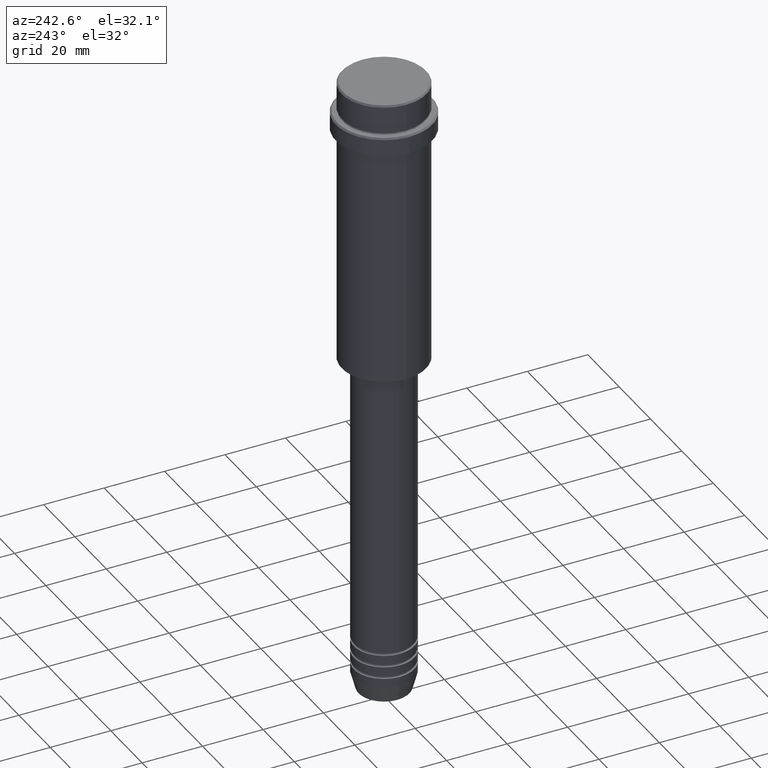
[diagram: clean part render]
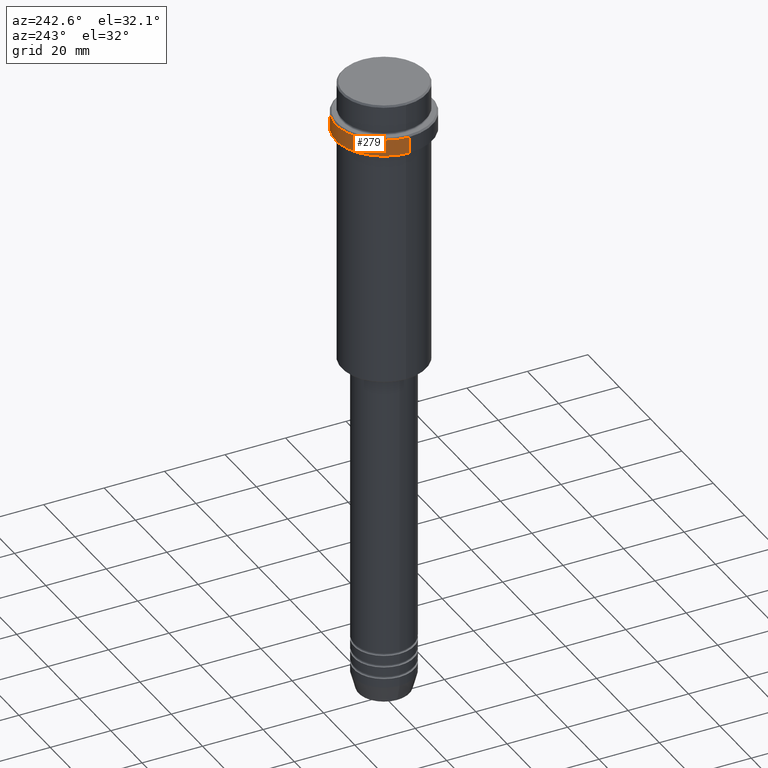
[diagram: same view with one face highlighted and labeled with its STEP entity id]
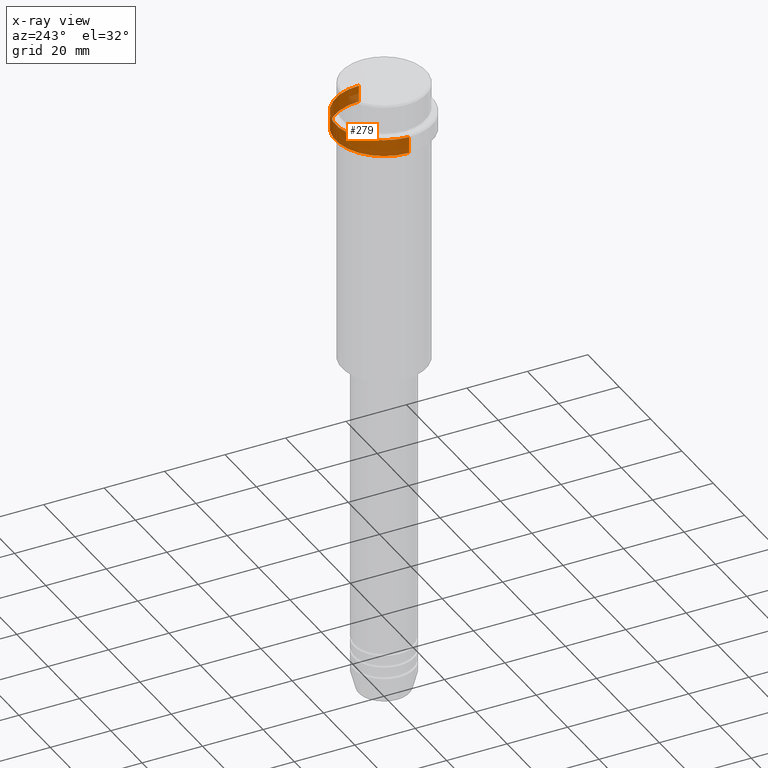
[diagram: x-ray of the same camera — body ghosted, the highlighted face saturated]
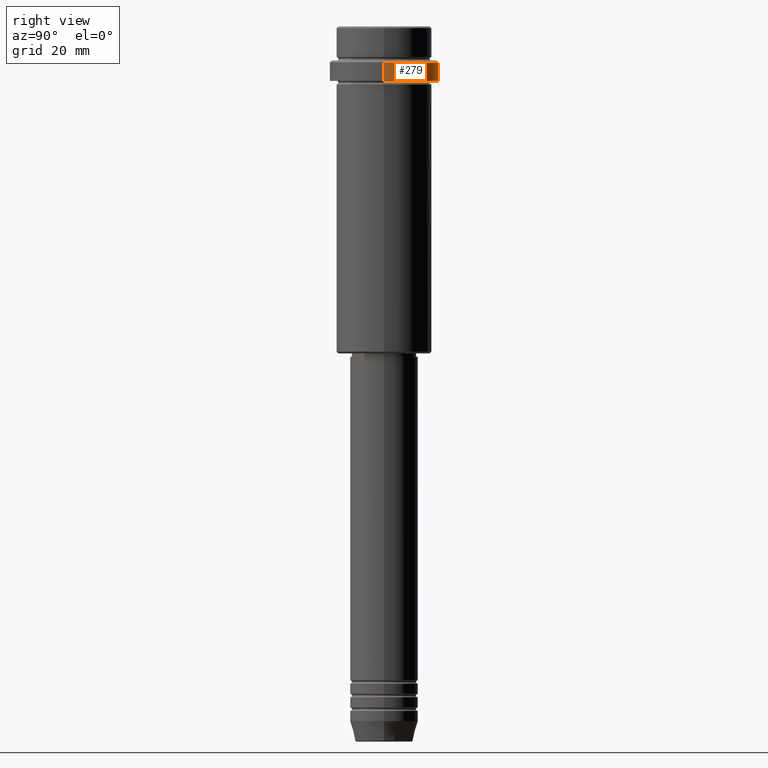
[diagram: same view with one face highlighted and labeled with its STEP entity id]
A machine part, auxiliary view. The second image highlights one B-rep face of the part: STEP entity #279.
The next image is the same camera in x-ray: the body ghosted, the highlighted face saturated — about 5% of this face is hidden behind the body in this view.
A second angle (right view) of the same face is appended — the face is thin or edge-on in the first view.
In plain terms, the highlighted cylindrical surface (partial cylindrical patch) has radius 16 mm, axis along (-0, -0, 1).
Its self-contained STEP definition (entity closure, byte-faithful):
#103 = AXIS2_PLACEMENT_3D ( 'NONE', #927, #476, #1032 ) ;
#158 = LINE ( 'NONE', #1035, #1288 ) ;
#268 = ORIENTED_EDGE ( 'NONE', *, *, #1094, .T. ) ;
#279 = ADVANCED_FACE ( 'NONE', ( #1397 ), #1392, .T. ) ;
#319 = CIRCLE ( 'NONE', #103, 15.99999999999997335 ) ;
#337 = ORIENTED_EDGE ( 'NONE', *, *, #515, .T. ) ;
#363 = DIRECTION ( 'NONE',  ( -0.000000000000000000, -0.000000000000000000, 1.000000000000000000 ) ) ;
#385 = CARTESIAN_POINT ( 'NONE',  ( 15.99999999999997335, 0.000000000000000000, 0.000000000000000000 ) ) ;
#446 = CARTESIAN_POINT ( 'NONE',  ( 15.99999999999997335, 0.000000000000000000, -16.00000000000000000 ) ) ;
#467 = LINE ( 'NONE', #385, #530 ) ;
#476 = DIRECTION ( 'NONE',  ( 0.000000000000000000, 0.000000000000000000, -1.000000000000000000 ) ) ;
#506 = EDGE_CURVE ( 'NONE', #1349, #1009, #467, .T. ) ;
#512 = VERTEX_POINT ( 'NONE', #1273 ) ;
#515 = EDGE_CURVE ( 'NONE', #1121, #1009, #319, .T. ) ;
#530 = VECTOR ( 'NONE', #363, 1000.000000000000000 ) ;
#576 = AXIS2_PLACEMENT_3D ( 'NONE', #877, #1398, #1404 ) ;
#625 = ORIENTED_EDGE ( 'NONE', *, *, #774, .T. ) ;
#679 = ORIENTED_EDGE ( 'NONE', *, *, #506, .F. ) ;
#743 = DIRECTION ( 'NONE',  ( 1.000000000000000000, 0.000000000000000000, 0.000000000000000000 ) ) ;
#750 = DIRECTION ( 'NONE',  ( -0.000000000000000000, -0.000000000000000000, 1.000000000000000000 ) ) ;
#774 = EDGE_CURVE ( 'NONE', #512, #1121, #158, .T. ) ;
#877 = CARTESIAN_POINT ( 'NONE',  ( 0.000000000000000000, 0.000000000000000000, -16.00000000000000000 ) ) ;
#891 = DIRECTION ( 'NONE',  ( -0.000000000000000000, -0.000000000000000000, 1.000000000000000000 ) ) ;
#914 = CARTESIAN_POINT ( 'NONE',  ( 15.99999999999997335, 0.000000000000000000, -10.50000000000001243 ) ) ;
#927 = CARTESIAN_POINT ( 'NONE',  ( 0.000000000000000000, 0.000000000000000000, -10.50000000000001243 ) ) ;
#930 = EDGE_LOOP ( 'NONE', ( #268, #625, #337, #679 ) ) ;
#962 = CARTESIAN_POINT ( 'NONE',  ( -15.99999999999997335, 1.959434878635761976E-15, -10.50000000000001243 ) ) ;
#1009 = VERTEX_POINT ( 'NONE', #914 ) ;
#1032 = DIRECTION ( 'NONE',  ( 1.000000000000000000, 0.000000000000000000, 0.000000000000000000 ) ) ;
#1035 = CARTESIAN_POINT ( 'NONE',  ( -15.99999999999997335, 1.959434878635761976E-15, 0.000000000000000000 ) ) ;
#1094 = EDGE_CURVE ( 'NONE', #1349, #512, #1201, .T. ) ;
#1121 = VERTEX_POINT ( 'NONE', #962 ) ;
#1201 = CIRCLE ( 'NONE', #576, 15.99999999999997335 ) ;
#1273 = CARTESIAN_POINT ( 'NONE',  ( -15.99999999999997335, 1.959434878635761976E-15, -16.00000000000000000 ) ) ;
#1285 = CARTESIAN_POINT ( 'NONE',  ( 0.000000000000000000, 0.000000000000000000, 0.000000000000000000 ) ) ;
#1288 = VECTOR ( 'NONE', #891, 1000.000000000000000 ) ;
#1311 = AXIS2_PLACEMENT_3D ( 'NONE', #1285, #750, #743 ) ;
#1349 = VERTEX_POINT ( 'NONE', #446 ) ;
#1392 = CYLINDRICAL_SURFACE ( 'NONE', #1311, 15.99999999999997335 ) ;
#1397 = FACE_OUTER_BOUND ( 'NONE', #930, .T. ) ;
#1398 = DIRECTION ( 'NONE',  ( -0.000000000000000000, -0.000000000000000000, 1.000000000000000000 ) ) ;
#1404 = DIRECTION ( 'NONE',  ( 1.000000000000000000, 0.000000000000000000, 0.000000000000000000 ) ) ;